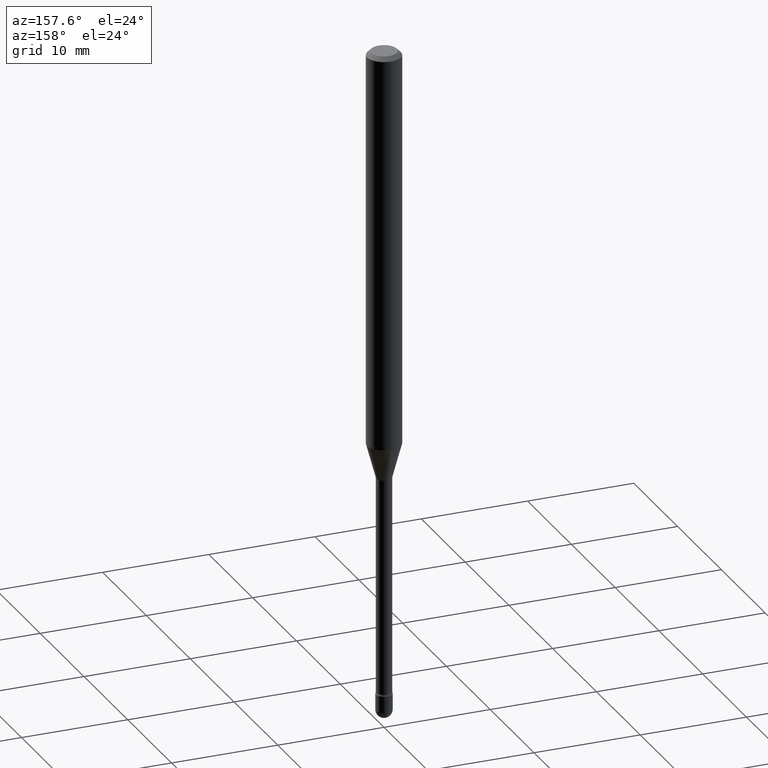
[diagram: clean part render]
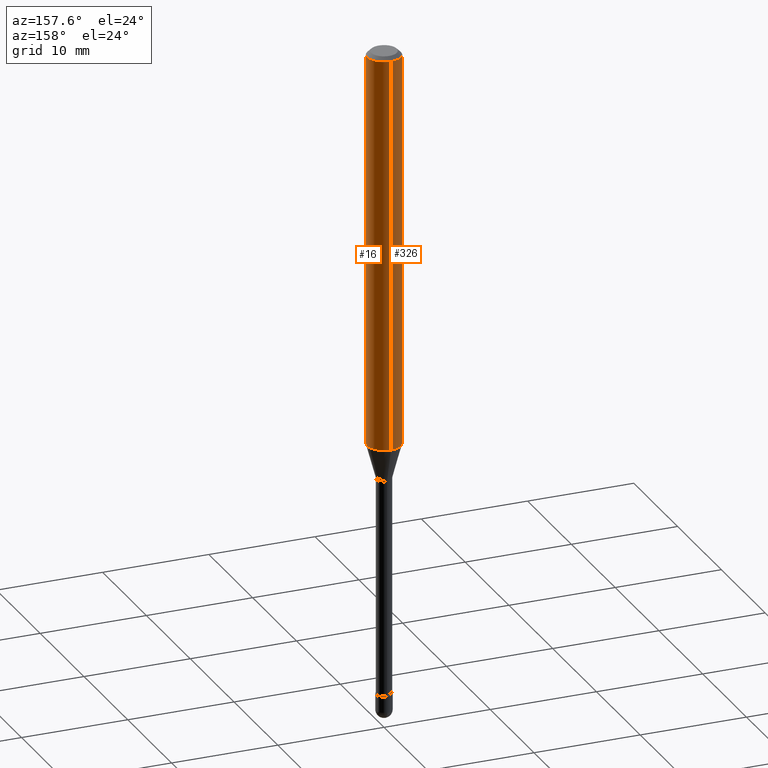
[diagram: same view with one multi-face feature highlighted, each face labeled with its STEP entity id]
A machine part, auxiliary view. The highlighted faces form ONE feature: a constant-radius fillet chain: 2 tangent blend faces with common blend radius 1.5875 mm. The faces share edges in the B-rep.
Their STEP definitions:
[1] entity #326 (Cylinder):
#4 = AXIS2_PLACEMENT_3D ( 'NONE', #307, #119, #34 ) ;
#26 = DIRECTION ( 'NONE',  ( -2.445508328524885386E-29, 3.491424740603154151E-15, 1.000000000000000000 ) ) ;
#27 = VERTEX_POINT ( 'NONE', #286 ) ;
#34 = DIRECTION ( 'NONE',  ( -6.982962677686265922E-15, -1.000000000000000000, 4.370956789862821150E-15 ) ) ;
#42 = EDGE_CURVE ( 'NONE', #68, #471, #197, .T. ) ;
#45 = EDGE_LOOP ( 'NONE', ( #157, #400, #97, #166 ) ) ;
#56 = CARTESIAN_POINT ( 'NONE',  ( -4.364351673553558748E-16, -0.06250000000000517641, -1.471990657300387584 ) ) ;
#62 = CARTESIAN_POINT ( 'NONE',  ( 3.668262492787347837E-31, -5.237137110904760365E-17, -0.01500000000000008271 ) ) ;
#68 = VERTEX_POINT ( 'NONE', #161 ) ;
#97 = ORIENTED_EDGE ( 'NONE', *, *, #273, .T. ) ;
#99 = DIRECTION ( 'NONE',  ( -6.982962677686265922E-15, -1.000000000000000000, 3.483106191921935554E-15 ) ) ;
#101 = CARTESIAN_POINT ( 'NONE',  ( 4.440892098500625669E-16, 0.06250000000000000000, 2.598593526035489042E-16 ) ) ;
#118 = CARTESIAN_POINT ( 'NONE',  ( -1.169113584055446105E-44, 1.669184350826100908E-30, 4.780733988912460139E-16 ) ) ;
#119 = DIRECTION ( 'NONE',  ( -2.445508328524885105E-29, 3.491424740603154151E-15, 1.000000000000000000 ) ) ;
#151 = VERTEX_POINT ( 'NONE', #56 ) ;
#157 = ORIENTED_EDGE ( 'NONE', *, *, #499, .F. ) ;
#161 = CARTESIAN_POINT ( 'NONE',  ( 4.440892098500987066E-16, 0.06249999999999993755, -0.01500000000000030129 ) ) ;
#166 = ORIENTED_EDGE ( 'NONE', *, *, #42, .F. ) ;
#178 = CARTESIAN_POINT ( 'NONE',  ( -4.364351673553916201E-16, -0.06250000000000000000, 6.962874451789432223E-16 ) ) ;
#197 = CIRCLE ( 'NONE', #561, 0.06250000000000000000 ) ;
#199 = LINE ( 'NONE', #101, #377 ) ;
#223 = EDGE_CURVE ( 'NONE', #27, #151, #457, .T. ) ;
#247 = DIRECTION ( 'NONE',  ( -2.445508328524885105E-29, 3.491424740603154151E-15, 1.000000000000000000 ) ) ;
#271 = LINE ( 'NONE', #178, #444 ) ;
#273 = EDGE_CURVE ( 'NONE', #151, #471, #271, .T. ) ;
#286 = CARTESIAN_POINT ( 'NONE',  ( 4.440892098500983121E-16, 0.06249999999999484440, -1.471990657300388250 ) ) ;
#307 = CARTESIAN_POINT ( 'NONE',  ( 3.599765411938919175E-29, -5.139344598835272478E-15, -1.471990657300388028 ) ) ;
#326 = ADVANCED_FACE ( 'NONE', ( #463 ), #549, .T. ) ;
#342 = DIRECTION ( 'NONE',  ( -2.445508328524885105E-29, 3.491424740603154151E-15, 1.000000000000000000 ) ) ;
#377 = VECTOR ( 'NONE', #26, 39.37007874015748143 ) ;
#400 = ORIENTED_EDGE ( 'NONE', *, *, #223, .T. ) ;
#409 = CARTESIAN_POINT ( 'NONE',  ( -4.364351673553912750E-16, -0.06250000000000005551, -0.01499999999999986587 ) ) ;
#426 = DIRECTION ( 'NONE',  ( -6.982962677686265922E-15, -1.000000000000000000, 3.491424740603154151E-15 ) ) ;
#444 = VECTOR ( 'NONE', #531, 39.37007874015748143 ) ;
#457 = CIRCLE ( 'NONE', #4, 0.06250000000000000000 ) ;
#463 = FACE_OUTER_BOUND ( 'NONE', #45, .T. ) ;
#471 = VERTEX_POINT ( 'NONE', #409 ) ;
#499 = EDGE_CURVE ( 'NONE', #27, #68, #199, .T. ) ;
#531 = DIRECTION ( 'NONE',  ( -2.445508328524885386E-29, 3.491424740603154151E-15, 1.000000000000000000 ) ) ;
#535 = AXIS2_PLACEMENT_3D ( 'NONE', #118, #342, #426 ) ;
#549 = CYLINDRICAL_SURFACE ( 'NONE', #535, 0.06250000000000000000 ) ;
#561 = AXIS2_PLACEMENT_3D ( 'NONE', #62, #247, #99 ) ;
[2] entity #16 (Cylinder):
#16 = ADVANCED_FACE ( 'NONE', ( #152 ), #291, .T. ) ;
#26 = DIRECTION ( 'NONE',  ( -2.445508328524885386E-29, 3.491424740603154151E-15, 1.000000000000000000 ) ) ;
#27 = VERTEX_POINT ( 'NONE', #286 ) ;
#50 = EDGE_CURVE ( 'NONE', #151, #27, #468, .T. ) ;
#56 = CARTESIAN_POINT ( 'NONE',  ( -4.364351673553558748E-16, -0.06250000000000517641, -1.471990657300387584 ) ) ;
#68 = VERTEX_POINT ( 'NONE', #161 ) ;
#95 = CARTESIAN_POINT ( 'NONE',  ( 3.668262492787347837E-31, -5.237137110904760365E-17, -0.01500000000000008271 ) ) ;
#101 = CARTESIAN_POINT ( 'NONE',  ( 4.440892098500625669E-16, 0.06250000000000000000, 2.598593526035489042E-16 ) ) ;
#102 = DIRECTION ( 'NONE',  ( -2.445508328524885105E-29, 3.491424740603154151E-15, 1.000000000000000000 ) ) ;
#107 = DIRECTION ( 'NONE',  ( -6.982962677686265922E-15, -1.000000000000000000, 3.491424740603154151E-15 ) ) ;
#126 = ORIENTED_EDGE ( 'NONE', *, *, #50, .T. ) ;
#130 = ORIENTED_EDGE ( 'NONE', *, *, #131, .F. ) ;
#131 = EDGE_CURVE ( 'NONE', #471, #68, #436, .T. ) ;
#151 = VERTEX_POINT ( 'NONE', #56 ) ;
#152 = FACE_OUTER_BOUND ( 'NONE', #485, .T. ) ;
#161 = CARTESIAN_POINT ( 'NONE',  ( 4.440892098500987066E-16, 0.06249999999999993755, -0.01500000000000030129 ) ) ;
#178 = CARTESIAN_POINT ( 'NONE',  ( -4.364351673553916201E-16, -0.06250000000000000000, 6.962874451789432223E-16 ) ) ;
#199 = LINE ( 'NONE', #101, #377 ) ;
#209 = AXIS2_PLACEMENT_3D ( 'NONE', #462, #507, #107 ) ;
#237 = DIRECTION ( 'NONE',  ( -6.982962677686265922E-15, -1.000000000000000000, 3.483106191921935554E-15 ) ) ;
#271 = LINE ( 'NONE', #178, #444 ) ;
#273 = EDGE_CURVE ( 'NONE', #151, #471, #271, .T. ) ;
#286 = CARTESIAN_POINT ( 'NONE',  ( 4.440892098500983121E-16, 0.06249999999999484440, -1.471990657300388250 ) ) ;
#291 = CYLINDRICAL_SURFACE ( 'NONE', #209, 0.06250000000000000000 ) ;
#297 = CARTESIAN_POINT ( 'NONE',  ( 3.599765411938919175E-29, -5.139344598835272478E-15, -1.471990657300388028 ) ) ;
#353 = AXIS2_PLACEMENT_3D ( 'NONE', #95, #102, #237 ) ;
#377 = VECTOR ( 'NONE', #26, 39.37007874015748143 ) ;
#408 = ORIENTED_EDGE ( 'NONE', *, *, #499, .T. ) ;
#409 = CARTESIAN_POINT ( 'NONE',  ( -4.364351673553912750E-16, -0.06250000000000005551, -0.01499999999999986587 ) ) ;
#415 = DIRECTION ( 'NONE',  ( -2.445508328524885105E-29, 3.491424740603154151E-15, 1.000000000000000000 ) ) ;
#417 = DIRECTION ( 'NONE',  ( -6.982962677686265922E-15, -1.000000000000000000, 4.370956789862821150E-15 ) ) ;
#436 = CIRCLE ( 'NONE', #353, 0.06250000000000000000 ) ;
#444 = VECTOR ( 'NONE', #531, 39.37007874015748143 ) ;
#462 = CARTESIAN_POINT ( 'NONE',  ( -1.169113584055446105E-44, 1.669184350826100908E-30, 4.780733988912460139E-16 ) ) ;
#468 = CIRCLE ( 'NONE', #518, 0.06250000000000000000 ) ;
#471 = VERTEX_POINT ( 'NONE', #409 ) ;
#479 = ORIENTED_EDGE ( 'NONE', *, *, #273, .F. ) ;
#485 = EDGE_LOOP ( 'NONE', ( #126, #408, #130, #479 ) ) ;
#499 = EDGE_CURVE ( 'NONE', #27, #68, #199, .T. ) ;
#507 = DIRECTION ( 'NONE',  ( -2.445508328524885105E-29, 3.491424740603154151E-15, 1.000000000000000000 ) ) ;
#518 = AXIS2_PLACEMENT_3D ( 'NONE', #297, #415, #417 ) ;
#531 = DIRECTION ( 'NONE',  ( -2.445508328524885386E-29, 3.491424740603154151E-15, 1.000000000000000000 ) ) ;